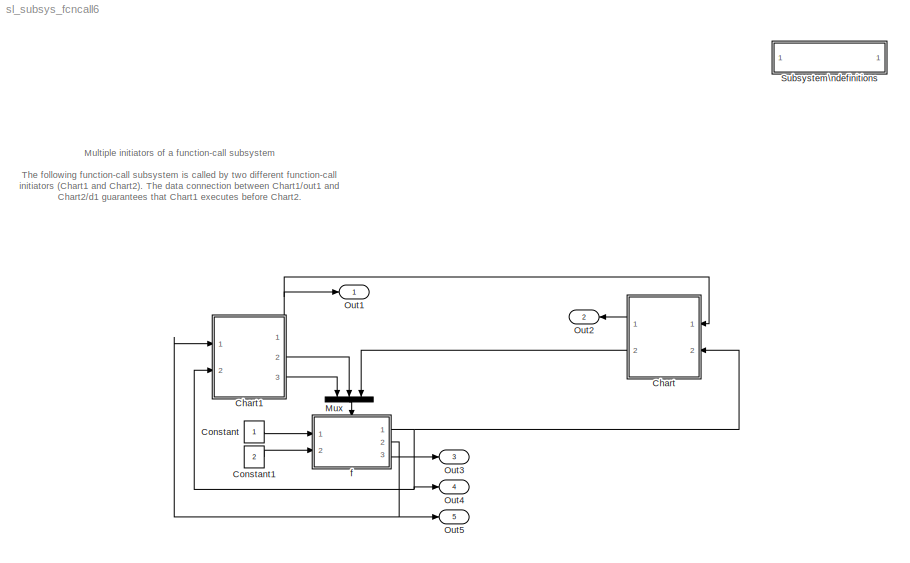
MODEL sl_subsys_fcncall6
KIND model
BLOCK [SubSystem]  Subsystem\ndefinitions
  MaskDisplay = disp('Subsystem\\ndefinitions')\n\n
  MaskIconFrame = on
  MaskIconOpaque = on
  MaskIconRotate = none
  MaskIconUnits = autoscale
  MinAlgLoopOccurrences = off
  OpenFcn = helpview([matlabroot,'/toolbox/simulink/simdemos/sl_subsys_definitions.html']);
  Ports = []
  PropExecContextAcrossSSBoundary = on
  RTWSystemCode = Auto
  TreatAsAtomicUnit = off
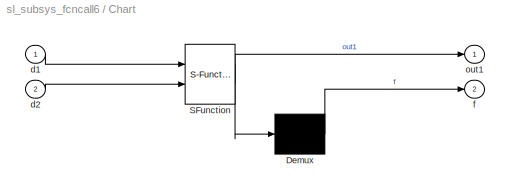
BLOCK [SubSystem] Chart
  MaskDescription = Stateflow diagram
  MaskDisplay = plot(sf('Private','sfblk','xIcon'),sf('Private','sfblk','yIcon'));text(0.5,0,sf('Private', 'sfblk', 'tIcon'),'HorizontalAl','Center','VerticalAl','Bottom');
  MaskIconFrame = off
  MaskIconOpaque = off
  MaskIconRotate = none
  MaskIconUnits = autoscale
  MaskSelfModifiable = on
  MaskType = Stateflow
  MinAlgLoopOccurrences = off
  Ports = [2, 2]
  PropExecContextAcrossSSBoundary = on
  RTWSystemCode = Auto
  TreatAsAtomicUnit = off
BLOCK [Demux] Chart/ Demux 
  Outputs = 1
  Ports = [1, 1]
BLOCK [S-Function] Chart/ SFunction 
  FunctionName = sf_sfun
  PortCounts = [2 2]
  Ports = [2, 2]
  Tag = Stateflow S-Function sl_subsys_fcncall6 2
BLOCK [Inport] Chart/d1
  IconDisplay = Port number
  LatchInput = off
  Port = 1
BLOCK [Inport] Chart/d2
  IconDisplay = Port number
  LatchInput = off
  Port = 2
BLOCK [Outport] Chart/f
  IconDisplay = Port number
  Port = 2
BLOCK [Outport] Chart/out1
  IconDisplay = Port number
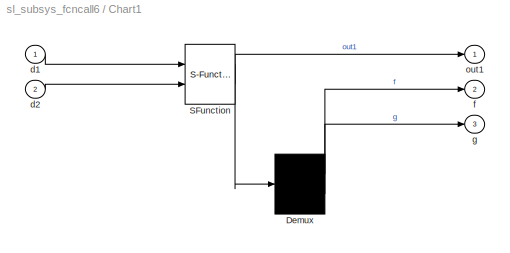
BLOCK [SubSystem] Chart1
  MaskDescription = Stateflow diagram
  MaskDisplay = plot(sf('Private','sfblk','xIcon'),sf('Private','sfblk','yIcon'));text(0.5,0,sf('Private', 'sfblk', 'tIcon'),'HorizontalAl','Center','VerticalAl','Bottom');
  MaskIconFrame = off
  MaskIconOpaque = off
  MaskIconRotate = none
  MaskIconUnits = autoscale
  MaskSelfModifiable = on
  MaskType = Stateflow
  MinAlgLoopOccurrences = off
  Ports = [2, 3]
  PropExecContextAcrossSSBoundary = on
  RTWSystemCode = Auto
  TreatAsAtomicUnit = off
BLOCK [Demux] Chart1/ Demux 
  Outputs = 2
  Ports = [1, 2]
BLOCK [S-Function] Chart1/ SFunction 
  FunctionName = sf_sfun
  PortCounts = [2 2]
  Ports = [2, 2]
  Tag = Stateflow S-Function sl_subsys_fcncall6 1
BLOCK [Inport] Chart1/d1
  IconDisplay = Port number
  LatchInput = off
  Port = 1
BLOCK [Inport] Chart1/d2
  IconDisplay = Port number
  LatchInput = off
  Port = 2
BLOCK [Outport] Chart1/f
  IconDisplay = Port number
  Port = 2
BLOCK [Outport] Chart1/g
  IconDisplay = Port number
  Port = 3
BLOCK [Outport] Chart1/out1
  IconDisplay = Port number
BLOCK [Constant] Constant
BLOCK [Constant] Constant1
  Value = 2
BLOCK [Mux] Mux
  DisplayOption = bar
  Inputs = 3
  Ports = [3, 1]
BLOCK [Outport] Out1
  IconDisplay = Port number
BLOCK [Outport] Out2
  IconDisplay = Port number
  Port = 2
BLOCK [Outport] Out3
  IconDisplay = Port number
  Port = 3
BLOCK [Outport] Out4
  IconDisplay = Port number
  Port = 4
BLOCK [Outport] Out5
  IconDisplay = Port number
  Port = 5
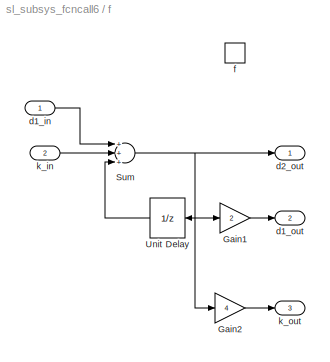
BLOCK [SubSystem] f
  MinAlgLoopOccurrences = off
  Ports = [2, 3, 0, 1]
  PropExecContextAcrossSSBoundary = on
  RTWSystemCode = Auto
  TreatAsAtomicUnit = on
BLOCK [Gain] f/Gain1
  Gain = 2
BLOCK [Gain] f/Gain2
  Gain = 4
BLOCK [Sum] f/Sum
  Inputs = +++
  Ports = [3, 1]
BLOCK [UnitDelay] f/Unit Delay
  SampleTime = -1
BLOCK [Inport] f/d1_in
  IconDisplay = Port number
  LatchInput = off
  Port = 1
BLOCK [Outport] f/d1_out
  IconDisplay = Port number
  Port = 2
BLOCK [Outport] f/d2_out
  IconDisplay = Port number
BLOCK [TriggerPort] f/f
  Ports = []
  TriggerType = function-call
BLOCK [Inport] f/k_in
  IconDisplay = Port number
  LatchInput = off
  Port = 2
BLOCK [Outport] f/k_out
  IconDisplay = Port number
  Port = 3
ANNOTATION (root): Multiple initiators of a function-call subsystem\n\nThe following function-call subsystem is called by two different function-call \ninitiators (Chart1 and Chart2). The data connection between Chart1/out1 and \nChart2/d1 guarantees that Chart1 executes before Chart2. \n\nCaution needs to be taken when creating function-call subsystems with \nmultiple callers. For example, if you remove the data co...<+546ch>
LINE Chart/ Demux :1 -> Chart/f:1
LINE Chart/ SFunction :1 -> Chart/ Demux :1
LINE Chart/ SFunction :2 -> Chart/out1:1
LINE Chart/d1:1 -> Chart/ SFunction :1
LINE Chart/d2:1 -> Chart/ SFunction :2
LINE Chart1/ Demux :1 -> Chart1/f:1
LINE Chart1/ Demux :2 -> Chart1/g:1
LINE Chart1/ SFunction :1 -> Chart1/ Demux :1
LINE Chart1/ SFunction :2 -> Chart1/out1:1
LINE Chart1/d1:1 -> Chart1/ SFunction :1
LINE Chart1/d2:1 -> Chart1/ SFunction :2
NET Chart1:1 -> Chart:1, Out1:1
LINE Chart1:2 -> Mux:2
LINE Chart1:3 -> Mux:1
LINE Chart:1 -> Out2:1
LINE Chart:2 -> Mux:3
LINE Constant1:1 -> f:2
LINE Constant:1 -> f:1
LINE Mux:1 -> f:trigger
LINE f/Gain1:1 -> f/d1_out:1
LINE f/Gain2:1 -> f/k_out:1
NET f/Sum:1 -> f/Gain1:1, f/Gain2:1, f/Unit Delay:1, f/d2_out:1
LINE f/Unit Delay:1 -> f/Sum:3
LINE f/d1_in:1 -> f/Sum:1
LINE f/k_in:1 -> f/Sum:2
NET f:1 -> Chart1:2, Chart:2, Out4:1
NET f:2 -> Chart1:1, Out5:1
LINE f:3 -> Out3:1
note: NET lines group one-source signal fan-out (src -> all destinations, sorted); 1:1 wires keep LINE
CHART Chart1 states=2 transitions=3
  STATE_LABEL 'one/\\nentry: f; out1= d1+d2;'
  STATE_LABEL 'two/\\nentry: g; out1=d1-d2;'
CHART Chart states=2 transitions=3
  STATE_LABEL 'one/\\nentry:f;out1=d1+d2;'
  STATE_LABEL 'two/\\nentry: f;out1=d1-d2;'
